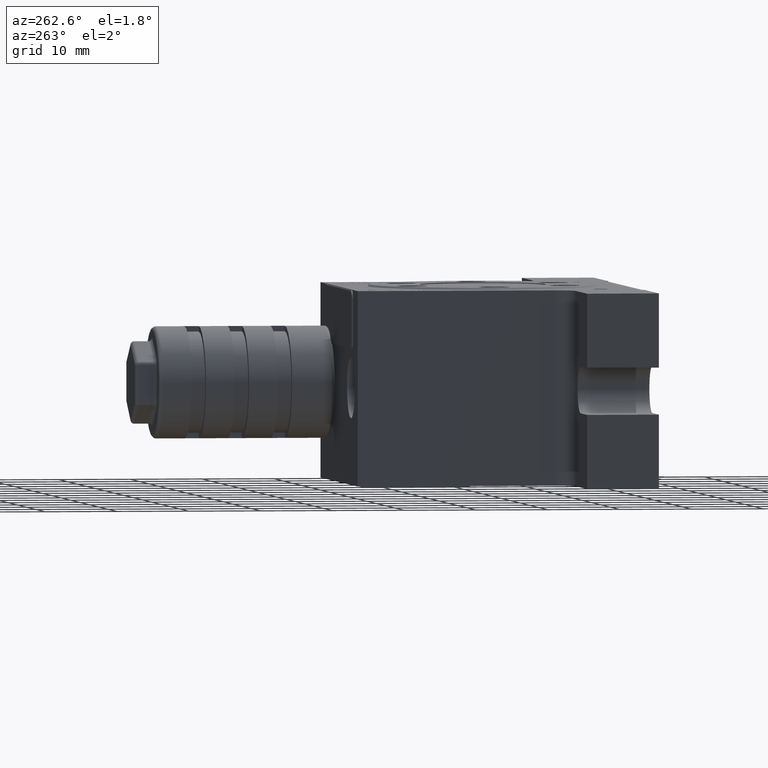
[diagram: clean part render]
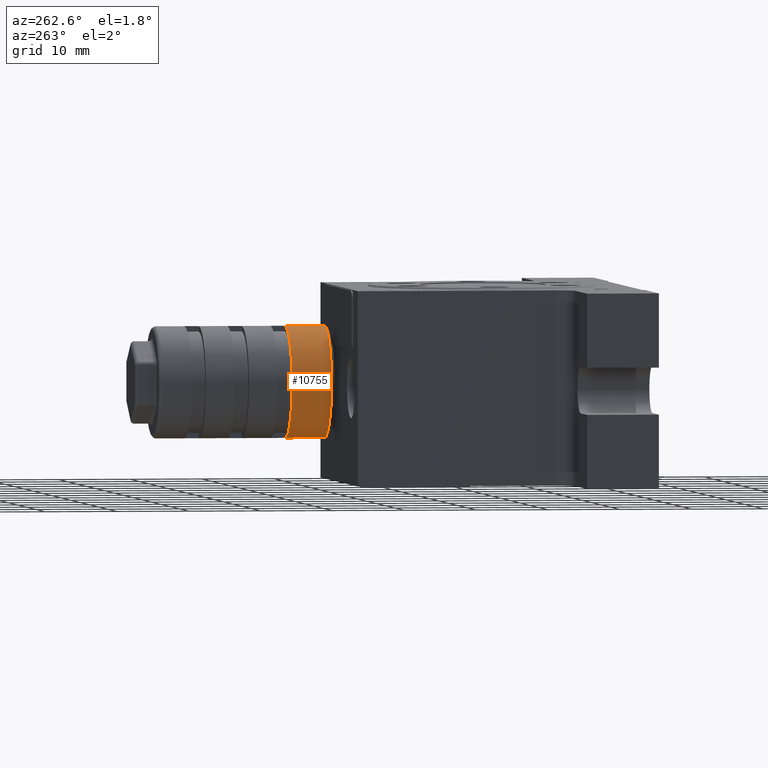
[diagram: same view with one face highlighted and labeled with its STEP entity id]
A machine part, auxiliary view. The second image highlights one B-rep face of the part: STEP entity #10755.
In plain terms, the highlighted cylindrical surface (partial cylindrical patch) has radius 7.75 mm, axis along (0, -1, -0).
Its self-contained STEP definition (entity closure, byte-faithful):
#93 = AXIS2_PLACEMENT_3D ( 'NONE', #20633, #20715, #2299 ) ;
#151 = VERTEX_POINT ( 'NONE', #21511 ) ;
#648 = VERTEX_POINT ( 'NONE', #7255 ) ;
#803 = CYLINDRICAL_SURFACE ( 'NONE', #16012, 7.750000000000000000 ) ;
#1368 = LINE ( 'NONE', #16357, #13296 ) ;
#1373 = ORIENTED_EDGE ( 'NONE', *, *, #17676, .F. ) ;
#1886 = VECTOR ( 'NONE', #12860, 1000.000000000000000 ) ;
#2299 = DIRECTION ( 'NONE',  ( 2.238352872228138200E-016, 0.0000000000000000000, -1.000000000000000000 ) ) ;
#2920 = DIRECTION ( 'NONE',  ( 2.238352872228138200E-016, 0.0000000000000000000, -1.000000000000000000 ) ) ;
#4816 = EDGE_CURVE ( 'NONE', #12595, #151, #19576, .T. ) ;
#5361 = ORIENTED_EDGE ( 'NONE', *, *, #22010, .T. ) ;
#7255 = CARTESIAN_POINT ( 'NONE',  ( 12.00000000000000000, 20.50000000000000000, 7.750000000000003600 ) ) ;
#7308 = CARTESIAN_POINT ( 'NONE',  ( 12.00000000000000200, 44.50000000000000000, -7.750000000000003600 ) ) ;
#8446 = ORIENTED_EDGE ( 'NONE', *, *, #4816, .T. ) ;
#10087 = CIRCLE ( 'NONE', #93, 7.750000000000000000 ) ;
#10755 = ADVANCED_FACE ( 'NONE', ( #18464 ), #803, .T. ) ;
#10777 = DIRECTION ( 'NONE',  ( -5.228563909572969700E-017, 1.000000000000000000, 2.111368100172860100E-017 ) ) ;
#11197 = EDGE_CURVE ( 'NONE', #13038, #648, #1368, .T. ) ;
#12595 = VERTEX_POINT ( 'NONE', #20677 ) ;
#12860 = DIRECTION ( 'NONE',  ( 5.228563909572969700E-017, -1.000000000000000000, -2.111368100172860100E-017 ) ) ;
#13038 = VERTEX_POINT ( 'NONE', #15485 ) ;
#13296 = VECTOR ( 'NONE', #16275, 1000.000000000000000 ) ;
#13589 = DIRECTION ( 'NONE',  ( 5.228563909572969700E-017, -1.000000000000000000, -2.111368100172860100E-017 ) ) ;
#13853 = AXIS2_PLACEMENT_3D ( 'NONE', #15880, #10777, #2920 ) ;
#15485 = CARTESIAN_POINT ( 'NONE',  ( 12.00000000000000000, 26.00000000000000000, 7.750000000000000000 ) ) ;
#15880 = CARTESIAN_POINT ( 'NONE',  ( 12.00000000000000000, 20.50000000000000000, 3.469446951953619700E-015 ) ) ;
#16012 = AXIS2_PLACEMENT_3D ( 'NONE', #20881, #13589, #21044 ) ;
#16275 = DIRECTION ( 'NONE',  ( 5.228563909572969700E-017, -1.000000000000000000, -2.111368100172860100E-017 ) ) ;
#16357 = CARTESIAN_POINT ( 'NONE',  ( 11.99999999999999800, 44.50000000000000000, 7.749999999999996400 ) ) ;
#17676 = EDGE_CURVE ( 'NONE', #12595, #13038, #10087, .T. ) ;
#18318 = EDGE_LOOP ( 'NONE', ( #1373, #8446, #5361, #18347 ) ) ;
#18347 = ORIENTED_EDGE ( 'NONE', *, *, #11197, .F. ) ;
#18464 = FACE_OUTER_BOUND ( 'NONE', #18318, .T. ) ;
#19576 = LINE ( 'NONE', #7308, #1886 ) ;
#19810 = CIRCLE ( 'NONE', #13853, 7.750000000000000000 ) ;
#20633 = CARTESIAN_POINT ( 'NONE',  ( 12.00000000000000000, 26.00000000000000000, 3.469446951953619700E-015 ) ) ;
#20677 = CARTESIAN_POINT ( 'NONE',  ( 12.00000000000000000, 26.00000000000000000, -7.750000000000000000 ) ) ;
#20715 = DIRECTION ( 'NONE',  ( -5.228563909572969700E-017, 1.000000000000000000, 2.111368100172860100E-017 ) ) ;
#20881 = CARTESIAN_POINT ( 'NONE',  ( 12.00000000000000000, 44.50000000000000000, -3.469446951953605100E-015 ) ) ;
#21044 = DIRECTION ( 'NONE',  ( -2.238352872228138200E-016, 0.0000000000000000000, 1.000000000000000000 ) ) ;
#21511 = CARTESIAN_POINT ( 'NONE',  ( 12.00000000000000400, 20.50000000000000000, -7.749999999999996400 ) ) ;
#22010 = EDGE_CURVE ( 'NONE', #151, #648, #19810, .T. ) ;